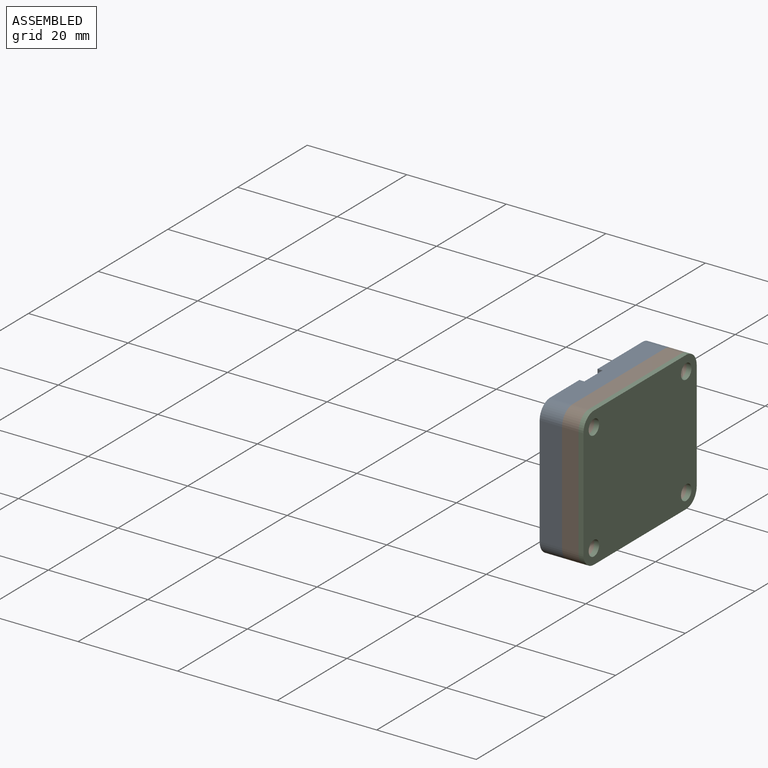
[diagram: assembled view]
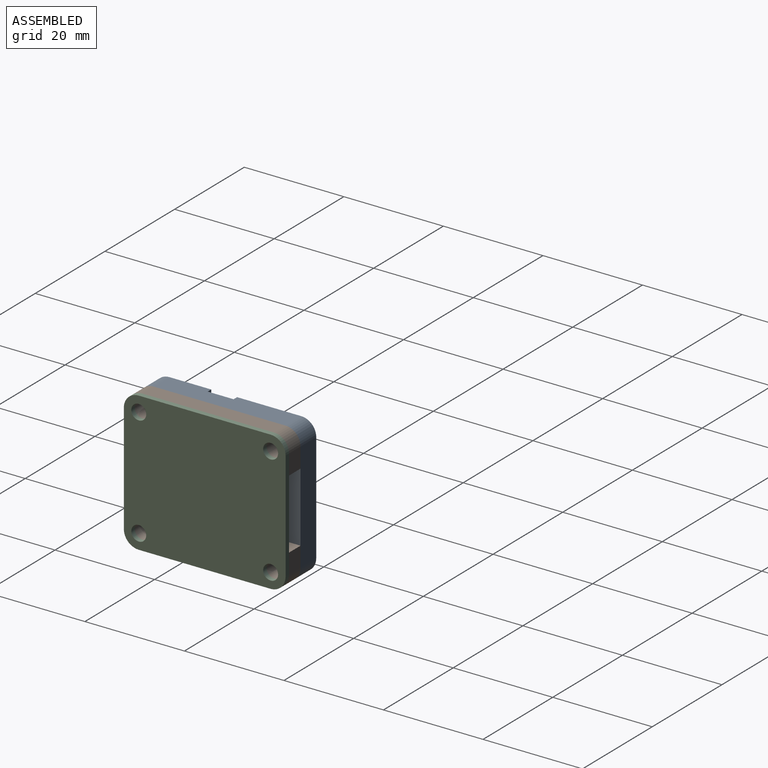
[diagram: assembled view, second angle]
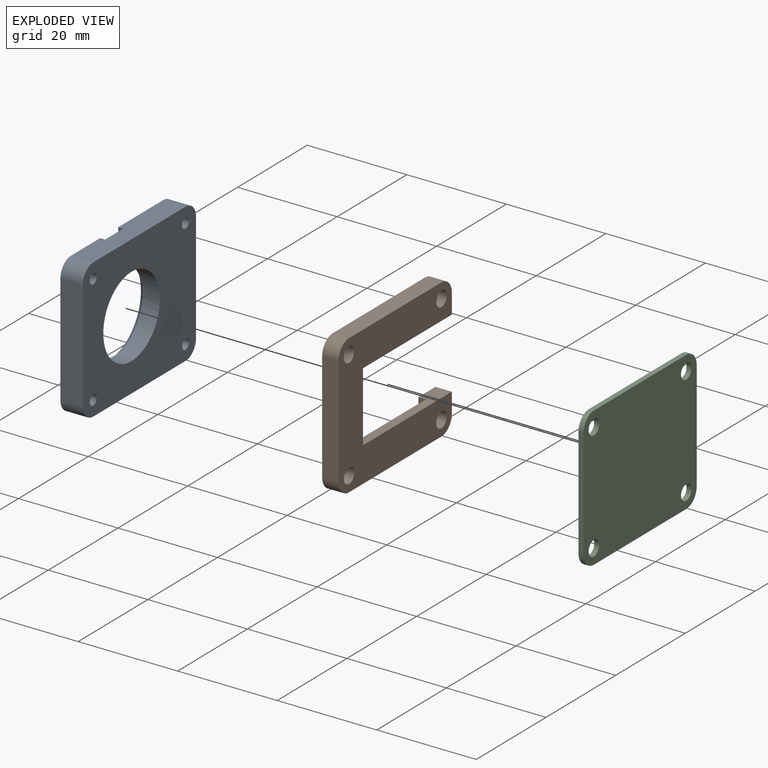
[diagram: exploded view]
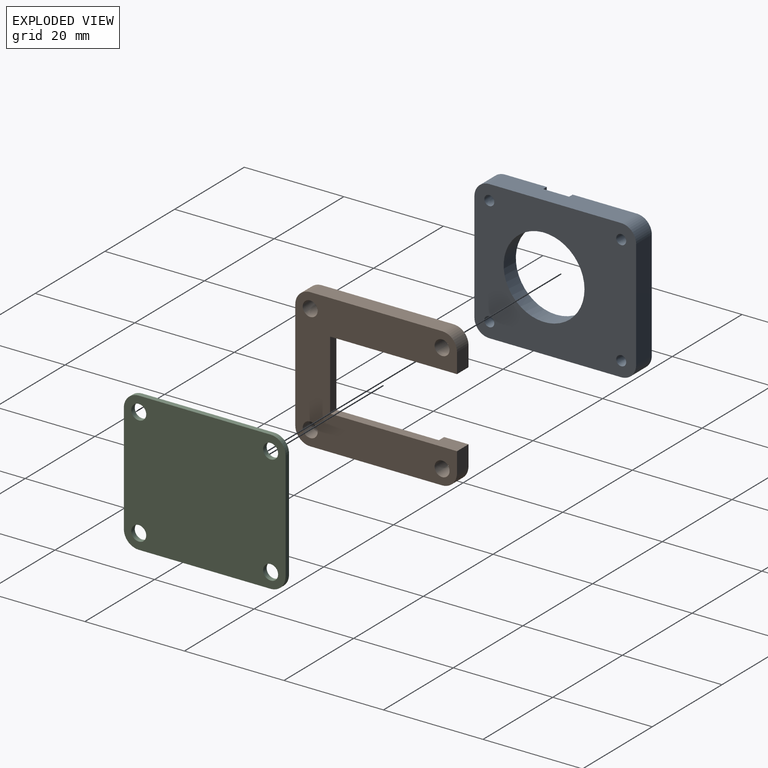
[diagram: exploded view, second angle]
ASSEMBLY  parts=3 mates=2
PART A: 19 faces, bbox 32.5x28x4.5 mm
  f0: plane 32.5x28mm, normal (0,0,1), area 602.1mm2, adj f1,f2,f3,f4,f6,f7,f8,f9
  f1: cone r=8.12mm half-angle=45deg, axis (0,0,1), area 69.2mm2, adj f0,f5,f12,f13
  f2: plane 22x4.5mm, normal (-1,0,0), area 99mm2, adj f0,f11,f15,f18
  f3: plane 26.5x4.5mm, normal (0,-1,0), area 114.1mm2, adj f0,f11,f12,f13,f14,f15,f16
  f4: plane 22x4.5mm, normal (1,0,0), area 99mm2, adj f0,f11,f16,f17
  f5: cylinder r=8.12mm len=16.25mm, axis (0,0,-1), area 178.7mm2, adj f1,f11,f14
  f6: cylinder r=1mm len=4.5mm, axis (0,0,-1), area 28.3mm2, adj f0,f11
  f7: cylinder r=1mm len=4.5mm, axis (0,0,-1), area 28.3mm2, adj f0,f11
  f8: cylinder r=1mm len=4.5mm, axis (0,0,-1), area 28.3mm2, adj f0,f11
  f9: cylinder r=1mm len=4.5mm, axis (0,0,-1), area 28.3mm2, adj f0,f11
  f10: plane 26.5x4.5mm, normal (0,1,0), area 119.2mm2, adj f0,f11,f17,f18
  f11: plane 32.5x28mm, normal (0,0,-1), area 682.3mm2, adj f2,f3,f4,f5,f6,f7,f8,f9
  f12: plane 6.32x1.02mm, normal (-1,0,0), area 5.8mm2, adj f0,f1,f3,f14
  f13: plane 6.32x1.02mm, normal (1,0,0), area 5.8mm2, adj f0,f1,f3,f14
  f14: plane 6.3x5.2mm, normal (0,0,1), area 31.3mm2, adj f3,f5,f12,f13
  f15: cylinder r=3mm len=4.5mm, axis (0,0,-1), area 21.2mm2, adj f0,f2,f3,f11
  f16: cylinder r=3mm len=4.5mm, axis (0,0,1), area 21.2mm2, adj f0,f3,f4,f11
  f17: cylinder r=3mm len=4.5mm, axis (0,0,-1), area 21.2mm2, adj f0,f4,f10,f11
  f18: cylinder r=3mm len=4.5mm, axis (0,0,1), area 21.2mm2, adj f0,f2,f10,f11
PART B: 24 faces, bbox 32.5x28x3.3 mm
  f0: plane 22.6x18mm, normal (0,0,1), area 118.4mm2, adj f1,f2,f3,f10,f11,f12,f13,f14
  f1: plane 25.5x3.3mm, normal (0,1,0), area 53.2mm2, adj f0,f2,f8,f9,f10,f15
  f2: plane 14x1.8mm, normal (1,0,0), area 25.2mm2, adj f0,f1,f3,f9
  f3: plane 25.5x3.3mm, normal (0,-1,0), area 53.2mm2, adj f0,f2,f4,f9,f14,f15
  f4: plane 4x3.3mm, normal (1,0,0), area 13.2mm2, adj f3,f9,f15,f20
  f5: plane 26.5x3.3mm, normal (0,1,0), area 87.4mm2, adj f9,f15,f20,f21
  f6: plane 22x3.3mm, normal (-1,0,0), area 72.6mm2, adj f9,f15,f21,f22
  f7: plane 26.5x3.3mm, normal (0,-1,0), area 87.5mm2, adj f9,f15,f22,f23
  f8: plane 4x3.3mm, normal (1,0,0), area 13.2mm2, adj f1,f9,f15,f23
  f9: plane 32.5x28mm, normal (0,0,-1), area 517mm2, adj f1,f2,f3,f4,f5,f6,f7,f8
  f10: plane 2x1.5mm, normal (-1,0,0), area 3mm2, adj f0,f1,f11,f15
  f11: plane 22.6x1.5mm, normal (0,1,0), area 33.9mm2, adj f0,f10,f12,f15
  f12: plane 18x1.5mm, normal (1,0,0), area 27mm2, adj f0,f11,f13,f15
  f13: plane 22.6x1.5mm, normal (0,-1,0), area 33.9mm2, adj f0,f12,f14,f15
  f14: plane 2x1.5mm, normal (-1,0,0), area 3mm2, adj f0,f3,f13,f15
  f15: plane 32.5x28mm, normal (0,0,1), area 398.6mm2, adj f1,f3,f4,f5,f6,f7,f8,f10
  f16: cylinder r=1.5mm len=3.3mm, axis (0,0,1), area 31.1mm2, adj f9,f15
  f17: cylinder r=1.5mm len=3.3mm, axis (0,0,1), area 31.1mm2, adj f9,f15
  f18: cylinder r=1.5mm len=3.3mm, axis (0,0,1), area 31.1mm2, adj f9,f15
  f19: cylinder r=1.5mm len=3.3mm, axis (0,0,1), area 31.1mm2, adj f9,f15
  f20: cylinder r=3mm len=3.3mm, axis (0,0,-1), area 15.6mm2, adj f4,f5,f9,f15
  f21: cylinder r=3mm len=3.3mm, axis (0,0,1), area 15.6mm2, adj f5,f6,f9,f15
  f22: cylinder r=3mm len=3.3mm, axis (0,0,-1), area 15.6mm2, adj f6,f7,f9,f15
  f23: cylinder r=3mm len=3.3mm, axis (0,0,1), area 15.6mm2, adj f7,f8,f9,f15
PART C: 14 faces, bbox 32.5x28x1 mm
  f0: plane 22x1mm, normal (-1,0,0), area 22mm2, adj f8,f9,f10,f13
  f1: plane 26.5x1mm, normal (0,-1,0), area 26.5mm2, adj f8,f9,f10,f11
  f2: plane 22x1mm, normal (1,0,0), area 22mm2, adj f8,f9,f11,f12
  f3: cylinder r=1.5mm len=3mm, axis (0,0,-1), area 9.4mm2, adj f8,f9
  f4: cylinder r=1.5mm len=3mm, axis (0,0,-1), area 9.4mm2, adj f8,f9
  f5: cylinder r=1.5mm len=3mm, axis (0,0,-1), area 9.4mm2, adj f8,f9
  f6: cylinder r=1.5mm len=3mm, axis (0,0,-1), area 9.4mm2, adj f8,f9
  f7: plane 26.5x1mm, normal (0,1,0), area 26.5mm2, adj f8,f9,f12,f13
  f8: plane 32.5x28mm, normal (0,0,1), area 874mm2, adj f0,f1,f2,f3,f4,f5,f6,f7
  f9: plane 32.5x28mm, normal (0,0,-1), area 874mm2, adj f0,f1,f2,f3,f4,f5,f6,f7
  f10: cylinder r=3mm len=3mm, axis (0,0,-1), area 4.7mm2, adj f0,f1,f8,f9
  f11: cylinder r=3mm len=3mm, axis (0,0,1), area 4.7mm2, adj f1,f2,f8,f9
  f12: cylinder r=3mm len=3mm, axis (0,0,-1), area 4.7mm2, adj f2,f7,f8,f9
  f13: cylinder r=3mm len=3mm, axis (0,0,1), area 4.7mm2, adj f0,f7,f8,f9
PLACE A rot(axis=(-0.58,-0.58,0.58),120deg) t=(-11.11,-16.94,6.5)mm
PLACE B rot(axis=(-0.58,-0.58,0.58),120deg) t=(-7.81,-16.94,6.5)mm
PLACE C rot(axis=(0.58,0.58,0.58),120deg) t=(-7.81,-14.69,6.5)mm
MATE planar C.f3 <-> B.f19  axis (-1,0,0) through (-7.81,-27.94,17.5)mm
MATE planar B.f19 <-> A.f7  axis (-1,0,0) through (-11.11,-27.94,17.5)mm
